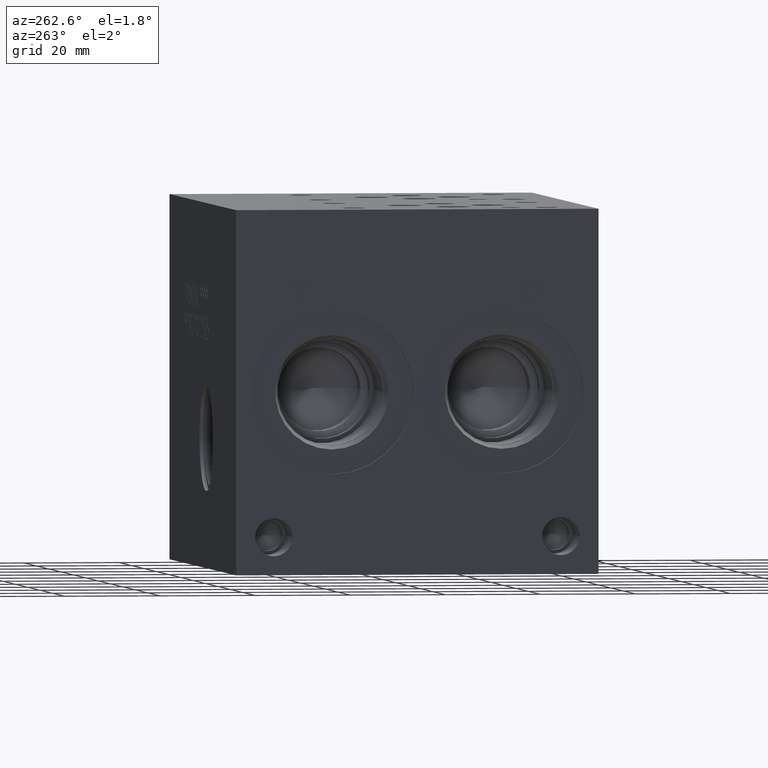
[diagram: clean part render]
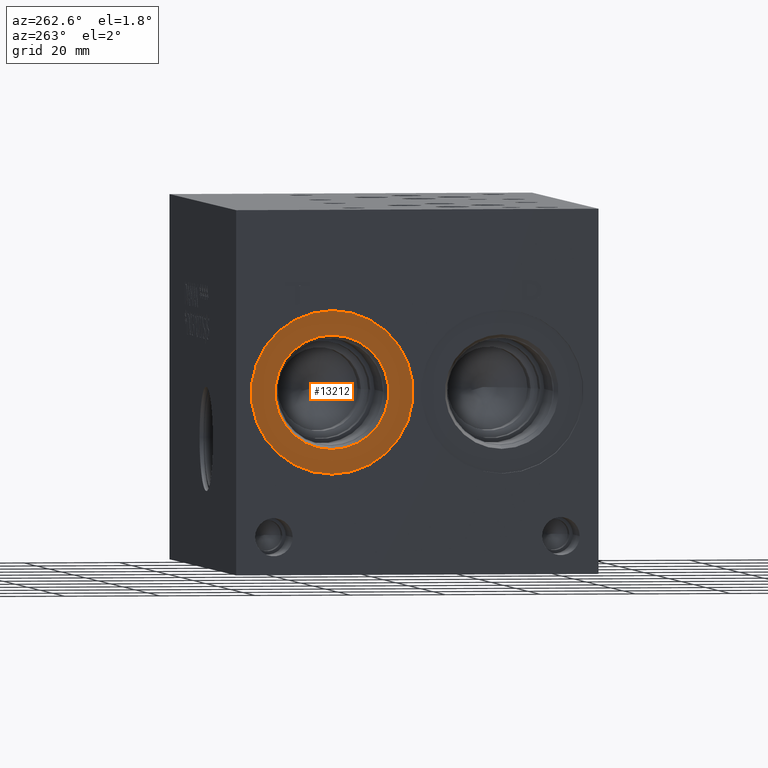
[diagram: same view with one face highlighted and labeled with its STEP entity id]
A machine part, auxiliary view. The second image highlights one B-rep face of the part: STEP entity #13212.
In plain terms, the highlighted planar face has unit normal (1, 0, 0).
Its self-contained STEP definition (entity closure, byte-faithful):
#256=CIRCLE('',#13832,17.0688);
#257=CIRCLE('',#13833,17.0688);
#258=CIRCLE('',#13835,11.9507);
#259=CIRCLE('',#13836,11.9507);
#552=FACE_BOUND('',#2437,.T.);
#1678=FACE_OUTER_BOUND('',#2436,.T.);
#2436=EDGE_LOOP('',(#11092,#11093));
#2437=EDGE_LOOP('',(#11094,#11095));
#5993=VERTEX_POINT('',#22458);
#5994=VERTEX_POINT('',#22460);
#5995=VERTEX_POINT('',#22464);
#5996=VERTEX_POINT('',#22465);
#7763=EDGE_CURVE('',#5993,#5994,#256,.T.);
#7764=EDGE_CURVE('',#5994,#5993,#257,.T.);
#7765=EDGE_CURVE('',#5995,#5996,#258,.T.);
#7766=EDGE_CURVE('',#5996,#5995,#259,.T.);
#11092=ORIENTED_EDGE('',*,*,#7764,.F.);
#11093=ORIENTED_EDGE('',*,*,#7763,.F.);
#11094=ORIENTED_EDGE('',*,*,#7765,.T.);
#11095=ORIENTED_EDGE('',*,*,#7766,.T.);
#12146=PLANE('',#13834);
#13212=ADVANCED_FACE('',(#1678,#552),#12146,.F.);
#13832=AXIS2_PLACEMENT_3D('',#22461,#16193,#16194);
#13833=AXIS2_PLACEMENT_3D('',#22462,#16195,#16196);
#13834=AXIS2_PLACEMENT_3D('',#22463,#16197,#16198);
#13835=AXIS2_PLACEMENT_3D('',#22466,#16199,#16200);
#13836=AXIS2_PLACEMENT_3D('',#22467,#16201,#16202);
#16193=DIRECTION('center_axis',(1.,0.,0.));
#16194=DIRECTION('ref_axis',(0.,0.,-1.));
#16195=DIRECTION('center_axis',(1.,0.,0.));
#16196=DIRECTION('ref_axis',(0.,0.,-1.));
#16197=DIRECTION('center_axis',(1.,0.,0.));
#16198=DIRECTION('ref_axis',(0.,0.,-1.));
#16199=DIRECTION('center_axis',(1.,0.,0.));
#16200=DIRECTION('ref_axis',(0.,0.,-1.));
#16201=DIRECTION('center_axis',(1.,0.,0.));
#16202=DIRECTION('ref_axis',(0.,0.,-1.));
#22458=CARTESIAN_POINT('',(0.7874,55.9562,21.0312));
#22460=CARTESIAN_POINT('',(0.7874,55.9562,55.1688));
#22461=CARTESIAN_POINT('Origin',(0.7874,55.9562,38.1));
#22462=CARTESIAN_POINT('Origin',(0.7874,55.9562,38.1));
#22463=CARTESIAN_POINT('Origin',(0.7874,55.9562,50.0507));
#22464=CARTESIAN_POINT('',(0.7874,55.9562,50.0507));
#22465=CARTESIAN_POINT('',(0.787399999999999,55.9562,26.1493));
#22466=CARTESIAN_POINT('Origin',(0.7874,55.9562,38.1));
#22467=CARTESIAN_POINT('Origin',(0.7874,55.9562,38.1));